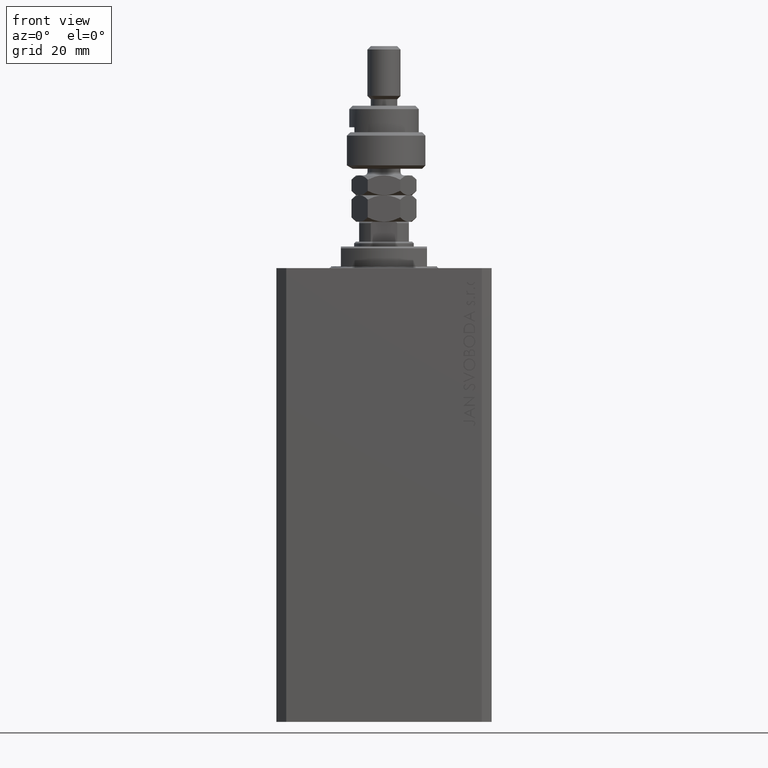
[diagram: clean part render]
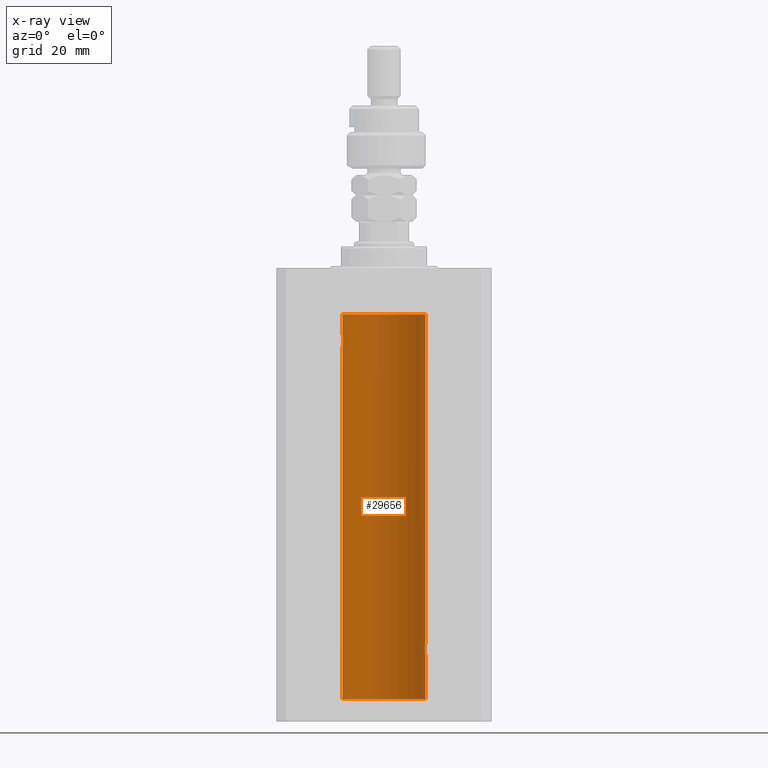
[diagram: x-ray — body ghosted, one internal face saturated and labeled with its STEP entity id]
A machine part, front view, then the same camera in x-ray: the body is ghosted and one INTERNAL B-rep face — a face not visible from any outside direction — is saturated and labeled: STEP entity #29656.
In plain terms, the highlighted cylindrical surface (partial cylindrical patch) has radius 12.5 mm, axis along (0, 0, 1).
Its self-contained STEP definition (entity closure, byte-faithful):
#347 = CARTESIAN_POINT ( 'NONE',  ( 12.46901623405144122, 0.8878913781257877780, -116.7968965171755258 ) ) ;
#501 = VERTEX_POINT ( 'NONE', #25975 ) ;
#542 = EDGE_CURVE ( 'NONE', #47672, #41142, #8741, .T. ) ;
#693 = CARTESIAN_POINT ( 'NONE',  ( 12.46910683544638232, 0.8866026273585037032, -113.2024786368969700 ) ) ;
#1367 = ORIENTED_EDGE ( 'NONE', *, *, #14376, .T. ) ;
#1483 = DIRECTION ( 'NONE',  ( 1.000000000000000000, 0.000000000000000000, 0.000000000000000000 ) ) ;
#1672 = VECTOR ( 'NONE', #47205, 1000.000000000000000 ) ;
#2438 = AXIS2_PLACEMENT_3D ( 'NONE', #9298, #29724, #1483 ) ;
#2837 = ORIENTED_EDGE ( 'NONE', *, *, #12276, .T. ) ;
#3406 = VECTOR ( 'NONE', #31574, 1000.000000000000000 ) ;
#3863 = AXIS2_PLACEMENT_3D ( 'NONE', #33209, #9919, #24857 ) ;
#4068 = EDGE_CURVE ( 'NONE', #501, #36478, #17108, .T. ) ;
#4394 = CARTESIAN_POINT ( 'NONE',  ( 12.50000000000000000, 2.320363022323678888E-15, -117.0000000000000142 ) ) ;
#4643 = CARTESIAN_POINT ( 'NONE',  ( 12.44079900692650931, 1.220007525301739282, -116.5901757908366534 ) ) ;
#4738 = CARTESIAN_POINT ( 'NONE',  ( 12.43037348241797524, 1.320834183883837554, -113.4924383770429728 ) ) ;
#5463 = CARTESIAN_POINT ( 'NONE',  ( 12.50000000000000000, 0.000000000000000000, -130.0999999999999943 ) ) ;
#6055 = VECTOR ( 'NONE', #28546, 1000.000000000000000 ) ;
#6838 = CARTESIAN_POINT ( 'NONE',  ( -12.34922241902463114, 1.935814255713574239, -22.51937350851555308 ) ) ;
#7303 = CARTESIAN_POINT ( 'NONE',  ( 0.000000000000000000, 0.000000000000000000, -130.0999999999999943 ) ) ;
#8259 = CARTESIAN_POINT ( 'NONE',  ( 12.34924836377099844, 1.935649219704934865, -114.4800206212716631 ) ) ;
#8741 = LINE ( 'NONE', #46956, #1672 ) ;
#9298 = CARTESIAN_POINT ( 'NONE',  ( 0.000000000000000000, 0.000000000000000000, -13.99999999999999822 ) ) ;
#9504 = CIRCLE ( 'NONE', #30538, 12.50000000000000000 ) ;
#9902 = VERTEX_POINT ( 'NONE', #5463 ) ;
#9919 = DIRECTION ( 'NONE',  ( -0.000000000000000000, -0.000000000000000000, 1.000000000000000000 ) ) ;
#10149 = DIRECTION ( 'NONE',  ( -0.000000000000000000, -0.000000000000000000, 1.000000000000000000 ) ) ;
#10289 = VECTOR ( 'NONE', #10149, 1000.000000000000000 ) ;
#11127 = CARTESIAN_POINT ( 'NONE',  ( -12.49789934882883458, 0.2624928479599910047, -20.01301208516349917 ) ) ;
#11303 = CIRCLE ( 'NONE', #2438, 12.50000000000000000 ) ;
#11378 = CARTESIAN_POINT ( 'NONE',  ( -12.37018026341338839, 1.797558627508998086, -22.88656313533016373 ) ) ;
#11571 = EDGE_LOOP ( 'NONE', ( #44139, #33182, #46896, #21471, #1367, #2837, #19624, #38040, #25263 ) ) ;
#11631 = CARTESIAN_POINT ( 'NONE',  ( -12.39873273758732175, 1.598680238462371062, -20.77033506126851137 ) ) ;
#11810 = CARTESIAN_POINT ( 'NONE',  ( 12.48983962833819028, 0.5199974825204898288, -113.0643516080801874 ) ) ;
#11948 = CARTESIAN_POINT ( 'NONE',  ( -12.50000000000000000, 1.530808498934191521E-15, -130.0999999999999943 ) ) ;
#12209 = CARTESIAN_POINT ( 'NONE',  ( 12.48989642018887736, 0.5185418732824252919, -116.9360129218760846 ) ) ;
#12276 = EDGE_CURVE ( 'NONE', #37494, #41735, #13336, .T. ) ;
#12307 = CARTESIAN_POINT ( 'NONE',  ( 12.50000000000000000, -7.266276684081261841E-23, -113.0000000000000142 ) ) ;
#12461 = CARTESIAN_POINT ( 'NONE',  ( 12.49789833780794446, 0.2625555164371021766, -116.9869817082214922 ) ) ;
#13336 = LINE ( 'NONE', #32828, #6055 ) ;
#14376 = EDGE_CURVE ( 'NONE', #39741, #37494, #21407, .T. ) ;
#14409 = CARTESIAN_POINT ( 'NONE',  ( -12.46903010196599304, 0.8876934327478135378, -20.20300788371381984 ) ) ;
#14660 = CARTESIAN_POINT ( 'NONE',  ( -12.40913174964213184, 1.507394620545641439, -23.32102833500698225 ) ) ;
#15819 = B_SPLINE_CURVE_WITH_KNOTS ( 'NONE', 3,
 ( #4394, #19805, #12461, #12209, #27917, #347, #39316, #4643, #35251, #16495, #35747, #27402, #35993, #16248 ),
 .UNSPECIFIED., .F., .F.,
 ( 4, 2, 2, 2, 2, 2, 4 ),
 ( 2.254408494944823136E-18, 0.0003915305205218102386, 0.0007830610410436180920, 0.001174591561565426108, 0.001566122082087234016, 0.002349183123130850048, 0.003132244164174466730 ),
 .UNSPECIFIED. ) ;
#15897 = DIRECTION ( 'NONE',  ( 0.000000000000000000, 0.000000000000000000, 1.000000000000000000 ) ) ;
#16248 = CARTESIAN_POINT ( 'NONE',  ( 12.33896267925302759, 2.000000000000247802, -115.0000000000000142 ) ) ;
#16495 = CARTESIAN_POINT ( 'NONE',  ( 12.39869754437268590, 1.598954131913722820, -116.2293215281301286 ) ) ;
#17108 = LINE ( 'NONE', #43226, #3406 ) ;
#18453 = CARTESIAN_POINT ( 'NONE',  ( 12.40916530024876430, 1.507117913375715990, -113.6786595504900674 ) ) ;
#18473 = CARTESIAN_POINT ( 'NONE',  ( -12.50000000000000000, 1.867773856434666690E-17, -20.00000000000000000 ) ) ;
#18702 = CARTESIAN_POINT ( 'NONE',  ( 12.46011632531798874, 1.003644408234883434, -113.2651679968767127 ) ) ;
#18720 = CARTESIAN_POINT ( 'NONE',  ( -12.46909283808506430, 0.8868029758979402155, -23.79742491916155345 ) ) ;
#18974 = CARTESIAN_POINT ( 'NONE',  ( -12.35517291625592051, 1.897967064543089721, -22.64415233770293412 ) ) ;
#19624 = ORIENTED_EDGE ( 'NONE', *, *, #24727, .T. ) ;
#19805 = CARTESIAN_POINT ( 'NONE',  ( 12.50000000000000178, 0.1324055009716466613, -117.0000000000000426 ) ) ;
#19904 = CARTESIAN_POINT ( 'NONE',  ( 12.39867611624532806, 1.590019252152828910, -113.7798449592961276 ) ) ;
#21407 = B_SPLINE_CURVE_WITH_KNOTS ( 'NONE', 3,
 ( #22491, #37949, #41505, #8259, #39158, #37700, #23682, #19904, #18453, #4738, #35346, #18702, #693, #34144, #11810, #31546, #46970, #12307 ),
 .UNSPECIFIED., .F., .F.,
 ( 4, 2, 2, 2, 2, 2, 2, 2, 4 ),
 ( 0.003132244164174466730, 0.003523586189974241625, 0.003914928215774016521, 0.004306270241573791416, 0.004697612267373566311, 0.005088954293173341206, 0.005480296318973116101, 0.005871638344772890997, 0.006262980370572665892 ),
 .UNSPECIFIED. ) ;
#21471 = ORIENTED_EDGE ( 'NONE', *, *, #34265, .T. ) ;
#21800 = FACE_OUTER_BOUND ( 'NONE', #11571, .T. ) ;
#22261 = CARTESIAN_POINT ( 'NONE',  ( -12.44076681548080288, 1.220297236145718944, -23.58991408680628155 ) ) ;
#22491 = CARTESIAN_POINT ( 'NONE',  ( 12.33896267925302759, 2.000000000000247802, -115.0000000000000142 ) ) ;
#22509 = CARTESIAN_POINT ( 'NONE',  ( -12.46021263690096958, 1.002494658017156981, -20.26446744561863156 ) ) ;
#22532 = LINE ( 'NONE', #37990, #10289 ) ;
#23682 = CARTESIAN_POINT ( 'NONE',  ( 12.37925647381943506, 1.734744884174218571, -113.9962073259865321 ) ) ;
#24173 = CARTESIAN_POINT ( 'NONE',  ( -12.50000000000000000, 1.530808498934191521E-15, -13.99999999999999822 ) ) ;
#24727 = EDGE_CURVE ( 'NONE', #41735, #36478, #11303, .T. ) ;
#24857 = DIRECTION ( 'NONE',  ( 1.000000000000000000, 0.000000000000000000, 0.000000000000000000 ) ) ;
#25263 = ORIENTED_EDGE ( 'NONE', *, *, #31768, .T. ) ;
#25611 = CARTESIAN_POINT ( 'NONE',  ( 12.33896267925302759, 2.000000000000247802, -115.0000000000000142 ) ) ;
#25975 = CARTESIAN_POINT ( 'NONE',  ( -12.50000000000000000, 1.867773856434666690E-17, -20.00000000000000000 ) ) ;
#25988 = EDGE_CURVE ( 'NONE', #9902, #39066, #22532, .T. ) ;
#26279 = EDGE_CURVE ( 'NONE', #9902, #47672, #9504, .T. ) ;
#26324 = CARTESIAN_POINT ( 'NONE',  ( -12.48990118705761532, 0.5184196815546056047, -20.06395648222637007 ) ) ;
#26572 = CARTESIAN_POINT ( 'NONE',  ( -12.48390768591463207, 0.6455696738844916016, -20.10252270298193977 ) ) ;
#26823 = CARTESIAN_POINT ( 'NONE',  ( -12.48394649977302073, 0.6448065707253024526, -23.89773031393659153 ) ) ;
#27402 = CARTESIAN_POINT ( 'NONE',  ( 12.34779119491631683, 1.947363444907009633, -115.5250277516825861 ) ) ;
#27917 = CARTESIAN_POINT ( 'NONE',  ( 12.48390005916863110, 0.6457215011736527899, -116.8974277155426904 ) ) ;
#28546 = DIRECTION ( 'NONE',  ( -0.000000000000000000, -0.000000000000000000, 1.000000000000000000 ) ) ;
#29656 = ADVANCED_FACE ( 'NONE', ( #21800 ), #44355, .F. ) ;
#29724 = DIRECTION ( 'NONE',  ( 0.000000000000000000, 0.000000000000000000, 1.000000000000000000 ) ) ;
#29867 = CARTESIAN_POINT ( 'NONE',  ( -12.34109209020652465, 1.986986967296539897, -22.26269462454597914 ) ) ;
#30538 = AXIS2_PLACEMENT_3D ( 'NONE', #7303, #15897, #42239 ) ;
#30616 = CARTESIAN_POINT ( 'NONE',  ( -12.37922086519035325, 1.734998657226764829, -23.00335814299181436 ) ) ;
#31546 = CARTESIAN_POINT ( 'NONE',  ( 12.49788668346399945, 0.2632864803365707607, -113.0130897583833587 ) ) ;
#31574 = DIRECTION ( 'NONE',  ( -0.000000000000000000, -0.000000000000000000, 1.000000000000000000 ) ) ;
#31768 = EDGE_CURVE ( 'NONE', #501, #41142, #49251, .T. ) ;
#32809 = CARTESIAN_POINT ( 'NONE',  ( 12.50000000000000000, 0.000000000000000000, -13.99999999999999822 ) ) ;
#32828 = CARTESIAN_POINT ( 'NONE',  ( 12.50000000000000000, 0.000000000000000000, -130.0999999999999943 ) ) ;
#33182 = ORIENTED_EDGE ( 'NONE', *, *, #26279, .F. ) ;
#33209 = CARTESIAN_POINT ( 'NONE',  ( 0.000000000000000000, 0.000000000000000000, -130.0999999999999943 ) ) ;
#33907 = CARTESIAN_POINT ( 'NONE',  ( -12.50000000000000000, 0.1323736289504353625, -20.00000000000000000 ) ) ;
#34144 = CARTESIAN_POINT ( 'NONE',  ( 12.48395395845270528, 0.6446573166014707423, -113.1022212421351583 ) ) ;
#34161 = CARTESIAN_POINT ( 'NONE',  ( -12.50000000000000000, 1.530808426276628993E-15, -23.99999999999999645 ) ) ;
#34265 = EDGE_CURVE ( 'NONE', #39066, #39741, #15819, .T. ) ;
#34663 = CARTESIAN_POINT ( 'NONE',  ( -12.43034574091277911, 1.321095788880539024, -23.50733550364322255 ) ) ;
#35251 = CARTESIAN_POINT ( 'NONE',  ( 12.43016561391612917, 1.322713721413880661, -116.5057887783670196 ) ) ;
#35346 = CARTESIAN_POINT ( 'NONE',  ( 12.44079117518645639, 1.220047488436368122, -113.4098967633508437 ) ) ;
#35747 = CARTESIAN_POINT ( 'NONE',  ( 12.37760587642916477, 1.747868572747719229, -116.0063965316900152 ) ) ;
#35993 = CARTESIAN_POINT ( 'NONE',  ( 12.33896267925302759, 2.000000000000248246, -115.2614317422079040 ) ) ;
#36478 = VERTEX_POINT ( 'NONE', #24173 ) ;
#37494 = VERTEX_POINT ( 'NONE', #46787 ) ;
#37700 = CARTESIAN_POINT ( 'NONE',  ( 12.37021546997940291, 1.797317011867403114, -114.1129511974108510 ) ) ;
#37720 = CARTESIAN_POINT ( 'NONE',  ( -12.49788564268284041, 0.2633501011236127343, -23.98690384766255335 ) ) ;
#37949 = CARTESIAN_POINT ( 'NONE',  ( 12.33896267925302581, 2.000000000000247358, -114.8693470594992334 ) ) ;
#37966 = CARTESIAN_POINT ( 'NONE',  ( -12.44082361696003503, 1.219754986802281449, -20.40963319990594016 ) ) ;
#37990 = CARTESIAN_POINT ( 'NONE',  ( 12.50000000000000000, 0.000000000000000000, -130.0999999999999943 ) ) ;
#38040 = ORIENTED_EDGE ( 'NONE', *, *, #4068, .F. ) ;
#38218 = CARTESIAN_POINT ( 'NONE',  ( -12.37764291807175354, 1.747608771958140794, -20.99316879552500481 ) ) ;
#39066 = VERTEX_POINT ( 'NONE', #45270 ) ;
#39158 = CARTESIAN_POINT ( 'NONE',  ( 12.35520276972935427, 1.897773362058238877, -114.3552827863433947 ) ) ;
#39316 = CARTESIAN_POINT ( 'NONE',  ( 12.46019522898365217, 1.002712894177336223, -116.7354089602759899 ) ) ;
#39741 = VERTEX_POINT ( 'NONE', #25611 ) ;
#41142 = VERTEX_POINT ( 'NONE', #49966 ) ;
#41505 = CARTESIAN_POINT ( 'NONE',  ( 12.34110728646152388, 1.986893050944454453, -114.7366134776498541 ) ) ;
#41735 = VERTEX_POINT ( 'NONE', #32809 ) ;
#41779 = CARTESIAN_POINT ( 'NONE',  ( -12.33895470450623044, 2.000049200055401766, -22.12992629360264729 ) ) ;
#42239 = DIRECTION ( 'NONE',  ( 1.000000000000000000, 0.000000000000000000, 0.000000000000000000 ) ) ;
#42273 = CARTESIAN_POINT ( 'NONE',  ( -12.50000000000000533, 0.1306394121199390135, -24.00000000000000711 ) ) ;
#43226 = CARTESIAN_POINT ( 'NONE',  ( -12.50000000000000000, 1.530808498934191521E-15, -130.0999999999999943 ) ) ;
#44139 = ORIENTED_EDGE ( 'NONE', *, *, #542, .F. ) ;
#44355 = CYLINDRICAL_SURFACE ( 'NONE', #3863, 12.50000000000000000 ) ;
#45270 = CARTESIAN_POINT ( 'NONE',  ( 12.50000000000000000, 2.320363022323678888E-15, -117.0000000000000142 ) ) ;
#45298 = CARTESIAN_POINT ( 'NONE',  ( -12.48983485452574982, 0.5201193324741355539, -23.93561774521849372 ) ) ;
#45550 = CARTESIAN_POINT ( 'NONE',  ( -12.33897869807161385, 1.999901172190678089, -21.73788193668374547 ) ) ;
#45799 = CARTESIAN_POINT ( 'NONE',  ( -12.34781876294798053, 1.947190906025043633, -21.47436412829509678 ) ) ;
#46046 = CARTESIAN_POINT ( 'NONE',  ( -12.46009879577771606, 1.003863686549169465, -23.73470742397611843 ) ) ;
#46787 = CARTESIAN_POINT ( 'NONE',  ( 12.50000000000000000, -7.266276684081261841E-23, -113.0000000000000142 ) ) ;
#46896 = ORIENTED_EDGE ( 'NONE', *, *, #25988, .T. ) ;
#46956 = CARTESIAN_POINT ( 'NONE',  ( -12.50000000000000000, 1.530808498934191521E-15, -130.0999999999999943 ) ) ;
#46970 = CARTESIAN_POINT ( 'NONE',  ( 12.49999999999999822, 0.1306079576516667173, -113.0000000000000284 ) ) ;
#47205 = DIRECTION ( 'NONE',  ( -0.000000000000000000, -0.000000000000000000, 1.000000000000000000 ) ) ;
#47672 = VERTEX_POINT ( 'NONE', #11948 ) ;
#49251 = B_SPLINE_CURVE_WITH_KNOTS ( 'NONE', 3,
 ( #18473, #33907, #11127, #26324, #26572, #14409, #22509, #37966, #49337, #11631, #38218, #45799, #45550, #41779, #29867, #6838, #18974, #11378, #30616, #49838, #14660, #34663, #22261, #46046, #18720, #26823, #45298, #37720, #42273, #34161 ),
 .UNSPECIFIED., .F., .F.,
 ( 4, 2, 2, 2, 2, 2, 2, 2, 2, 2, 2, 2, 2, 2, 4 ),
 ( 1.814683826656258666E-20, 0.0003914362731607577369, 0.0007828725463215154739, 0.001174308819482273265, 0.001565745092643030948, 0.002348617638964546530, 0.003131490185286061895, 0.003522926458446825216, 0.003914362731607588103, 0.004305799004768351423, 0.004697235277929114744, 0.005088671551089878065, 0.005480107824250641385, 0.005871544097411404706, 0.006262980370572168026 ),
 .UNSPECIFIED. ) ;
#49337 = CARTESIAN_POINT ( 'NONE',  ( -12.43019346654084956, 1.322451657002078340, -20.49398366327208620 ) ) ;
#49838 = CARTESIAN_POINT ( 'NONE',  ( -12.39864157855465088, 1.590288205413973532, -23.21980790594580313 ) ) ;
#49966 = CARTESIAN_POINT ( 'NONE',  ( -12.50000000000000000, 1.530808426276628993E-15, -23.99999999999999645 ) ) ;